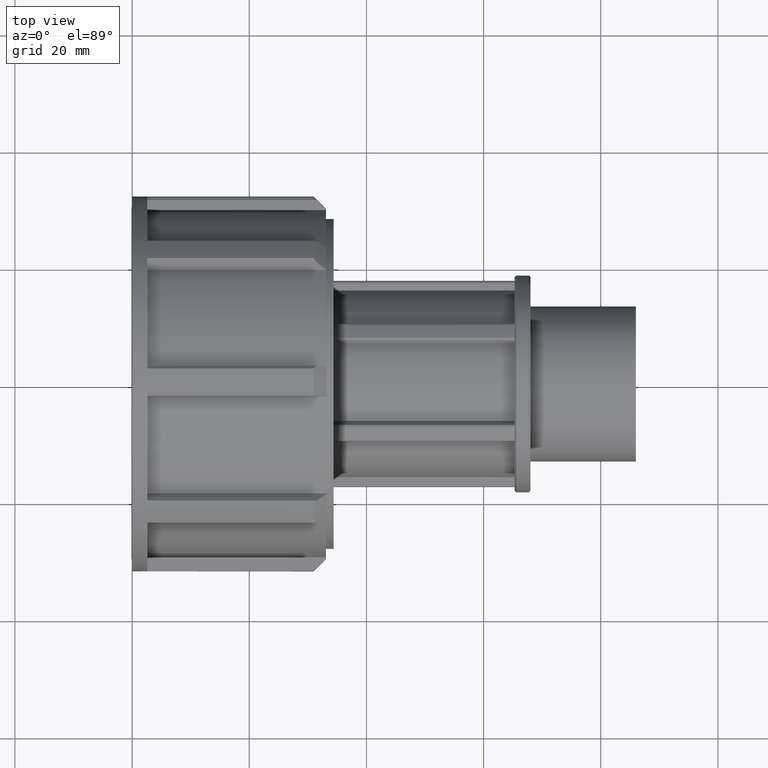
[diagram: clean part render]
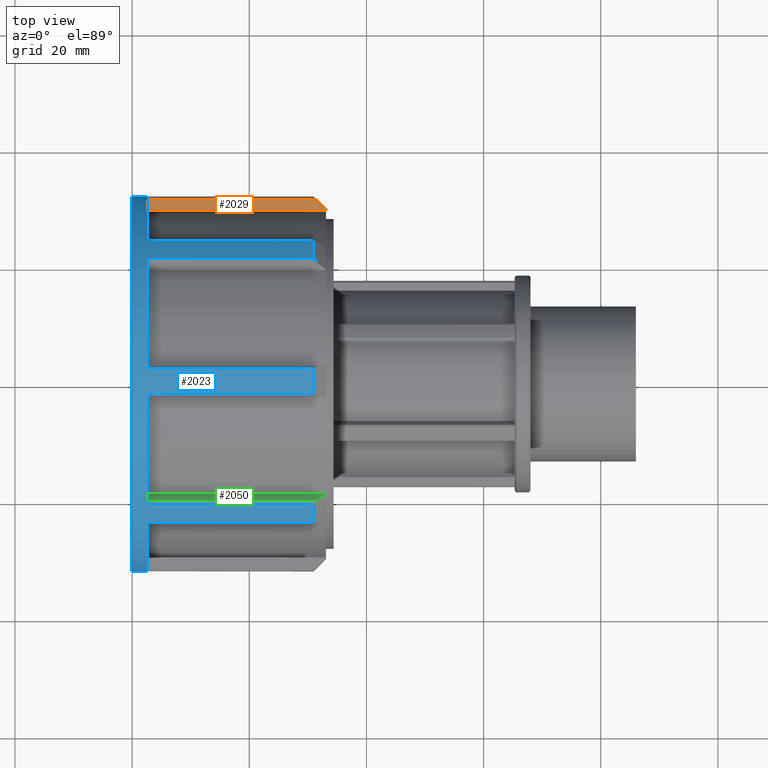
[diagram: same view with three faces highlighted in distinct colors, each labeled with its STEP entity id]
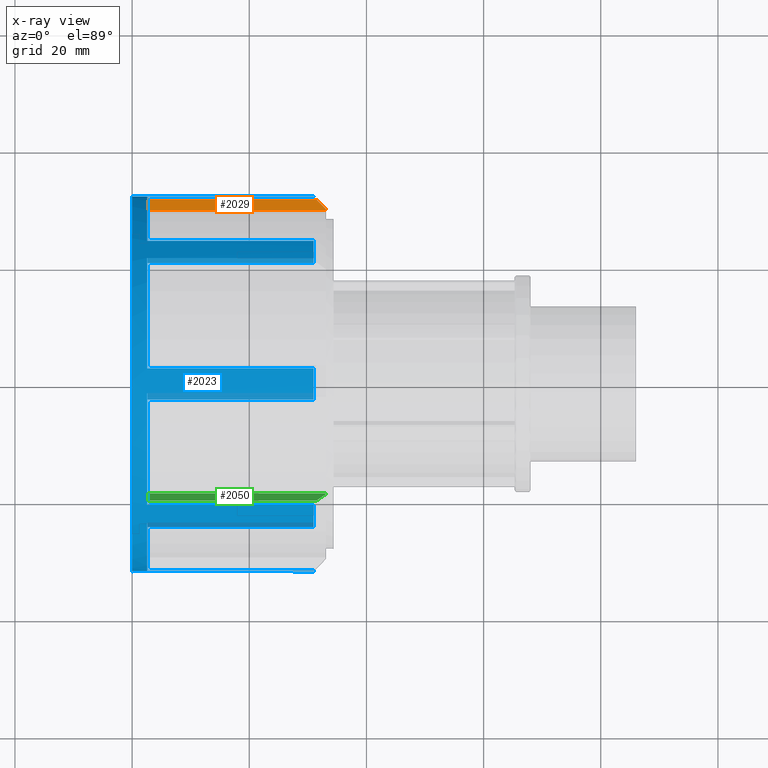
[diagram: x-ray of the same camera — body ghosted, the three highlighted faces saturated]
A machine part, top view with three faces highlighted in distinct colors.
The next image is the same camera in x-ray (body ghosted, the three faces saturated) — at least one of them is partly hidden behind the body in this view.
Their STEP definitions:

[orange] entity #2029 — the highlighted planar face has unit normal (0, 0, 1).
#21=(
BOUNDED_CURVE()
B_SPLINE_CURVE(2,(#3226,#3227,#3228),.UNSPECIFIED.,.F.,.F.)
B_SPLINE_CURVE_WITH_KNOTS((3,3),(4.00848492634826,4.32179029074017),
 .UNSPECIFIED.)
CURVE()
GEOMETRIC_REPRESENTATION_ITEM()
RATIONAL_B_SPLINE_CURVE((1.00845065883688,1.0045555834664,1.))
REPRESENTATION_ITEM('')
);
#246=FACE_OUTER_BOUND('',#368,.T.);
#368=EDGE_LOOP('',(#1603,#1604,#1605,#1606,#1607));
#559=LINE('',#3237,#739);
#560=LINE('',#3240,#740);
#561=LINE('',#3242,#741);
#562=LINE('',#3243,#742);
#739=VECTOR('',#2606,28.9417013413115);
#740=VECTOR('',#2609,1.71944788489031);
#741=VECTOR('',#2610,30.53);
#742=VECTOR('',#2611,0.125213116454761);
#930=VERTEX_POINT('',#3221);
#931=VERTEX_POINT('',#3225);
#933=VERTEX_POINT('',#3235);
#934=VERTEX_POINT('',#3239);
#935=VERTEX_POINT('',#3241);
#1177=EDGE_CURVE('',#930,#931,#21,.T.);
#1181=EDGE_CURVE('',#933,#930,#559,.T.);
#1182=EDGE_CURVE('',#934,#933,#560,.T.);
#1183=EDGE_CURVE('',#935,#934,#561,.T.);
#1184=EDGE_CURVE('',#931,#935,#562,.T.);
#1603=ORIENTED_EDGE('',*,*,#1181,.F.);
#1604=ORIENTED_EDGE('',*,*,#1182,.F.);
#1605=ORIENTED_EDGE('',*,*,#1183,.F.);
#1606=ORIENTED_EDGE('',*,*,#1184,.F.);
#1607=ORIENTED_EDGE('',*,*,#1177,.F.);
#1937=PLANE('',#2195);
#2029=ADVANCED_FACE('',(#246),#1937,.T.);
#2195=AXIS2_PLACEMENT_3D('',#3238,#2607,#2608);
#2606=DIRECTION('',(1.,0.,0.));
#2607=DIRECTION('center_axis',(0.,0.,1.));
#2608=DIRECTION('ref_axis',(0.,1.,0.));
#2609=DIRECTION('',(0.,1.,0.));
#2610=DIRECTION('',(-1.,0.,0.));
#2611=DIRECTION('',(0.,-1.,0.));
#3221=CARTESIAN_POINT('',(31.5217013413115,31.3617543941686,2.6441));
#3225=CARTESIAN_POINT('',(33.11,29.767519625733,2.6441));
#3226=CARTESIAN_POINT('Ctrl Pts',(31.5217013413115,31.3617543941686,2.6441));
#3227=CARTESIAN_POINT('Ctrl Pts',(32.3365618682367,30.5440029302099,2.6441));
#3228=CARTESIAN_POINT('Ctrl Pts',(33.11,29.767519625733,2.6441));
#3235=CARTESIAN_POINT('',(2.58,31.3617543941686,2.6441));
#3237=CARTESIAN_POINT('',(1.29,31.3617543941686,2.6441));
#3238=CARTESIAN_POINT('Origin',(33.11,28.0355905090298,2.6441));
#3239=CARTESIAN_POINT('',(2.58,29.6423065092783,2.6441));
#3240=CARTESIAN_POINT('',(2.58,28.8977952545149,2.6441));
#3241=CARTESIAN_POINT('',(33.11,29.6423065092783,2.6441));
#3242=CARTESIAN_POINT('',(17.845,29.6423065092783,2.6441));
#3243=CARTESIAN_POINT('',(33.11,31.8905743941686,2.6441));

[blue] entity #2023 — the highlighted cylindrical surface (bore or boss wall) has radius 32 mm, axis along (1, 0, 0).
#64=FACE_BOUND('',#362,.T.);
#111=CIRCLE('',#2170,32.);
#113=CIRCLE('',#2173,32.);
#114=CIRCLE('',#2174,32.);
#115=CIRCLE('',#2175,32.);
#116=CIRCLE('',#2176,32.);
#117=CIRCLE('',#2177,32.);
#118=CIRCLE('',#2178,32.);
#119=CIRCLE('',#2179,32.);
#120=CIRCLE('',#2180,32.);
#121=CIRCLE('',#2181,32.);
#122=CIRCLE('',#2182,32.);
#123=CIRCLE('',#2183,32.);
#124=CIRCLE('',#2184,32.);
#125=CIRCLE('',#2185,32.);
#126=CIRCLE('',#2186,32.);
#127=CIRCLE('',#2187,32.);
#128=CIRCLE('',#2188,32.);
#179=CYLINDRICAL_SURFACE('',#2172,32.);
#240=FACE_OUTER_BOUND('',#361,.T.);
#361=EDGE_LOOP('',(#1547));
#362=EDGE_LOOP('',(#1548,#1549,#1550,#1551,#1552,#1553,#1554,#1555,#1556,
#1557,#1558,#1559,#1560,#1561,#1562,#1563,#1564,#1565,#1566,#1567,#1568,
#1569,#1570,#1571,#1572,#1573,#1574,#1575,#1576,#1577,#1578,#1579));
#535=LINE('',#3123,#715);
#536=LINE('',#3146,#716);
#537=LINE('',#3150,#717);
#538=LINE('',#3154,#718);
#539=LINE('',#3158,#719);
#540=LINE('',#3162,#720);
#541=LINE('',#3166,#721);
#542=LINE('',#3170,#722);
#543=LINE('',#3174,#723);
#544=LINE('',#3178,#724);
#545=LINE('',#3182,#725);
#546=LINE('',#3186,#726);
#547=LINE('',#3190,#727);
#548=LINE('',#3194,#728);
#549=LINE('',#3198,#729);
#550=LINE('',#3201,#730);
#715=VECTOR('',#2530,28.41472);
#716=VECTOR('',#2543,28.41472);
#717=VECTOR('',#2546,28.41472);
#718=VECTOR('',#2549,28.41472);
#719=VECTOR('',#2552,28.41472);
#720=VECTOR('',#2555,28.41472);
#721=VECTOR('',#2558,28.41472);
#722=VECTOR('',#2561,28.41472);
#723=VECTOR('',#2564,28.41472);
#724=VECTOR('',#2567,28.41472);
#725=VECTOR('',#2570,28.41472);
#726=VECTOR('',#2573,28.41472);
#727=VECTOR('',#2576,28.41472);
#728=VECTOR('',#2579,28.41472);
#729=VECTOR('',#2582,28.41472);
#730=VECTOR('',#2585,28.41472);
#887=VERTEX_POINT('',#3114);
#890=VERTEX_POINT('',#3121);
#891=VERTEX_POINT('',#3125);
#895=VERTEX_POINT('',#3141);
#896=VERTEX_POINT('',#3143);
#897=VERTEX_POINT('',#3145);
#898=VERTEX_POINT('',#3147);
#899=VERTEX_POINT('',#3149);
#900=VERTEX_POINT('',#3151);
#901=VERTEX_POINT('',#3153);
#902=VERTEX_POINT('',#3155);
#903=VERTEX_POINT('',#3157);
#904=VERTEX_POINT('',#3159);
#905=VERTEX_POINT('',#3161);
#906=VERTEX_POINT('',#3163);
#907=VERTEX_POINT('',#3165);
#908=VERTEX_POINT('',#3167);
#909=VERTEX_POINT('',#3169);
#910=VERTEX_POINT('',#3171);
#911=VERTEX_POINT('',#3173);
#912=VERTEX_POINT('',#3175);
#913=VERTEX_POINT('',#3177);
#914=VERTEX_POINT('',#3179);
#915=VERTEX_POINT('',#3181);
#916=VERTEX_POINT('',#3183);
#917=VERTEX_POINT('',#3185);
#918=VERTEX_POINT('',#3187);
#919=VERTEX_POINT('',#3189);
#920=VERTEX_POINT('',#3191);
#921=VERTEX_POINT('',#3193);
#922=VERTEX_POINT('',#3195);
#923=VERTEX_POINT('',#3197);
#924=VERTEX_POINT('',#3199);
#1131=EDGE_CURVE('',#890,#887,#535,.T.);
#1132=EDGE_CURVE('',#887,#891,#111,.T.);
#1137=EDGE_CURVE('',#895,#895,#113,.T.);
#1138=EDGE_CURVE('',#896,#890,#114,.T.);
#1139=EDGE_CURVE('',#897,#896,#536,.T.);
#1140=EDGE_CURVE('',#898,#897,#115,.T.);
#1141=EDGE_CURVE('',#899,#898,#537,.T.);
#1142=EDGE_CURVE('',#900,#899,#116,.T.);
#1143=EDGE_CURVE('',#901,#900,#538,.T.);
#1144=EDGE_CURVE('',#902,#901,#117,.T.);
#1145=EDGE_CURVE('',#903,#902,#539,.T.);
#1146=EDGE_CURVE('',#904,#903,#118,.T.);
#1147=EDGE_CURVE('',#905,#904,#540,.T.);
#1148=EDGE_CURVE('',#906,#905,#119,.T.);
#1149=EDGE_CURVE('',#907,#906,#541,.T.);
#1150=EDGE_CURVE('',#908,#907,#120,.T.);
#1151=EDGE_CURVE('',#909,#908,#542,.T.);
#1152=EDGE_CURVE('',#910,#909,#121,.T.);
#1153=EDGE_CURVE('',#911,#910,#543,.T.);
#1154=EDGE_CURVE('',#912,#911,#122,.T.);
#1155=EDGE_CURVE('',#913,#912,#544,.T.);
#1156=EDGE_CURVE('',#914,#913,#123,.T.);
#1157=EDGE_CURVE('',#915,#914,#545,.T.);
#1158=EDGE_CURVE('',#916,#915,#124,.T.);
#1159=EDGE_CURVE('',#917,#916,#546,.T.);
#1160=EDGE_CURVE('',#918,#917,#125,.T.);
#1161=EDGE_CURVE('',#919,#918,#547,.T.);
#1162=EDGE_CURVE('',#920,#919,#126,.T.);
#1163=EDGE_CURVE('',#921,#920,#548,.T.);
#1164=EDGE_CURVE('',#922,#921,#127,.T.);
#1165=EDGE_CURVE('',#923,#922,#549,.T.);
#1166=EDGE_CURVE('',#924,#923,#128,.T.);
#1167=EDGE_CURVE('',#891,#924,#550,.T.);
#1547=ORIENTED_EDGE('',*,*,#1137,.T.);
#1548=ORIENTED_EDGE('',*,*,#1131,.F.);
#1549=ORIENTED_EDGE('',*,*,#1138,.F.);
#1550=ORIENTED_EDGE('',*,*,#1139,.F.);
#1551=ORIENTED_EDGE('',*,*,#1140,.F.);
#1552=ORIENTED_EDGE('',*,*,#1141,.F.);
#1553=ORIENTED_EDGE('',*,*,#1142,.F.);
#1554=ORIENTED_EDGE('',*,*,#1143,.F.);
#1555=ORIENTED_EDGE('',*,*,#1144,.F.);
#1556=ORIENTED_EDGE('',*,*,#1145,.F.);
#1557=ORIENTED_EDGE('',*,*,#1146,.F.);
#1558=ORIENTED_EDGE('',*,*,#1147,.F.);
#1559=ORIENTED_EDGE('',*,*,#1148,.F.);
#1560=ORIENTED_EDGE('',*,*,#1149,.F.);
#1561=ORIENTED_EDGE('',*,*,#1150,.F.);
#1562=ORIENTED_EDGE('',*,*,#1151,.F.);
#1563=ORIENTED_EDGE('',*,*,#1152,.F.);
#1564=ORIENTED_EDGE('',*,*,#1153,.F.);
#1565=ORIENTED_EDGE('',*,*,#1154,.F.);
#1566=ORIENTED_EDGE('',*,*,#1155,.F.);
#1567=ORIENTED_EDGE('',*,*,#1156,.F.);
#1568=ORIENTED_EDGE('',*,*,#1157,.F.);
#1569=ORIENTED_EDGE('',*,*,#1158,.F.);
#1570=ORIENTED_EDGE('',*,*,#1159,.F.);
#1571=ORIENTED_EDGE('',*,*,#1160,.F.);
#1572=ORIENTED_EDGE('',*,*,#1161,.F.);
#1573=ORIENTED_EDGE('',*,*,#1162,.F.);
#1574=ORIENTED_EDGE('',*,*,#1163,.F.);
#1575=ORIENTED_EDGE('',*,*,#1164,.F.);
#1576=ORIENTED_EDGE('',*,*,#1165,.F.);
#1577=ORIENTED_EDGE('',*,*,#1166,.F.);
#1578=ORIENTED_EDGE('',*,*,#1167,.F.);
#1579=ORIENTED_EDGE('',*,*,#1132,.F.);
#2023=ADVANCED_FACE('',(#240,#64),#179,.T.);
#2170=AXIS2_PLACEMENT_3D('',#3126,#2533,#2534);
#2172=AXIS2_PLACEMENT_3D('',#3140,#2537,#2538);
#2173=AXIS2_PLACEMENT_3D('',#3142,#2539,#2540);
#2174=AXIS2_PLACEMENT_3D('',#3144,#2541,#2542);
#2175=AXIS2_PLACEMENT_3D('',#3148,#2544,#2545);
#2176=AXIS2_PLACEMENT_3D('',#3152,#2547,#2548);
#2177=AXIS2_PLACEMENT_3D('',#3156,#2550,#2551);
#2178=AXIS2_PLACEMENT_3D('',#3160,#2553,#2554);
#2179=AXIS2_PLACEMENT_3D('',#3164,#2556,#2557);
#2180=AXIS2_PLACEMENT_3D('',#3168,#2559,#2560);
#2181=AXIS2_PLACEMENT_3D('',#3172,#2562,#2563);
#2182=AXIS2_PLACEMENT_3D('',#3176,#2565,#2566);
#2183=AXIS2_PLACEMENT_3D('',#3180,#2568,#2569);
#2184=AXIS2_PLACEMENT_3D('',#3184,#2571,#2572);
#2185=AXIS2_PLACEMENT_3D('',#3188,#2574,#2575);
#2186=AXIS2_PLACEMENT_3D('',#3192,#2577,#2578);
#2187=AXIS2_PLACEMENT_3D('',#3196,#2580,#2581);
#2188=AXIS2_PLACEMENT_3D('',#3200,#2583,#2584);
#2530=DIRECTION('',(1.,0.,0.));
#2533=DIRECTION('center_axis',(1.,0.,0.));
#2534=DIRECTION('ref_axis',(0.,1.,0.));
#2537=DIRECTION('center_axis',(1.,0.,0.));
#2538=DIRECTION('ref_axis',(0.,1.,0.));
#2539=DIRECTION('center_axis',(1.,0.,0.));
#2540=DIRECTION('ref_axis',(0.,0.,-1.));
#2541=DIRECTION('center_axis',(1.,0.,0.));
#2542=DIRECTION('ref_axis',(0.,0.,-1.));
#2543=DIRECTION('',(-1.,0.,0.));
#2544=DIRECTION('center_axis',(1.,0.,0.));
#2545=DIRECTION('ref_axis',(0.,1.,0.));
#2546=DIRECTION('',(1.,0.,0.));
#2547=DIRECTION('center_axis',(1.,0.,0.));
#2548=DIRECTION('ref_axis',(0.,0.,-1.));
#2549=DIRECTION('',(-1.,0.,0.));
#2550=DIRECTION('center_axis',(1.,0.,0.));
#2551=DIRECTION('ref_axis',(0.,1.,0.));
#2552=DIRECTION('',(1.,0.,0.));
#2553=DIRECTION('center_axis',(1.,0.,0.));
#2554=DIRECTION('ref_axis',(0.,0.,-1.));
#2555=DIRECTION('',(-1.,0.,0.));
#2556=DIRECTION('center_axis',(1.,0.,0.));
#2557=DIRECTION('ref_axis',(0.,1.,0.));
#2558=DIRECTION('',(1.,0.,0.));
#2559=DIRECTION('center_axis',(1.,0.,0.));
#2560=DIRECTION('ref_axis',(0.,0.,-1.));
#2561=DIRECTION('',(-1.,0.,0.));
#2562=DIRECTION('center_axis',(1.,0.,0.));
#2563=DIRECTION('ref_axis',(0.,-1.,0.));
#2564=DIRECTION('',(1.,0.,0.));
#2565=DIRECTION('center_axis',(1.,0.,0.));
#2566=DIRECTION('ref_axis',(0.,0.,-1.));
#2567=DIRECTION('',(-1.,0.,0.));
#2568=DIRECTION('center_axis',(1.,0.,0.));
#2569=DIRECTION('ref_axis',(0.,-1.,0.));
#2570=DIRECTION('',(1.,0.,0.));
#2571=DIRECTION('center_axis',(1.,0.,0.));
#2572=DIRECTION('ref_axis',(0.,0.,-1.));
#2573=DIRECTION('',(-1.,0.,0.));
#2574=DIRECTION('center_axis',(1.,0.,0.));
#2575=DIRECTION('ref_axis',(0.,-1.,0.));
#2576=DIRECTION('',(1.,0.,0.));
#2577=DIRECTION('center_axis',(1.,0.,0.));
#2578=DIRECTION('ref_axis',(0.,0.,-1.));
#2579=DIRECTION('',(-1.,0.,0.));
#2580=DIRECTION('center_axis',(1.,0.,0.));
#2581=DIRECTION('ref_axis',(0.,1.,0.));
#2582=DIRECTION('',(1.,0.,0.));
#2583=DIRECTION('center_axis',(1.,0.,0.));
#2584=DIRECTION('ref_axis',(0.,0.,-1.));
#2585=DIRECTION('',(-1.,0.,0.));
#3114=CARTESIAN_POINT('',(30.99472,24.0746234411097,21.0810935714629));
#3121=CARTESIAN_POINT('',(2.58,24.0746234411097,21.0810935714629));
#3123=CARTESIAN_POINT('',(1.29,24.0746234411097,21.0810935714629));
#3125=CARTESIAN_POINT('',(30.99472,21.0810935714629,24.0746234411097));
#3126=CARTESIAN_POINT('Origin',(30.99472,0.,0.));
#3140=CARTESIAN_POINT('Origin',(1.29,0.,0.));
#3141=CARTESIAN_POINT('',(0.,32.,0.));
#3142=CARTESIAN_POINT('Origin',(0.,0.,0.));
#3143=CARTESIAN_POINT('',(2.58,31.9299137089308,2.11674527051173));
#3144=CARTESIAN_POINT('Origin',(2.58000000000001,0.,0.));
#3145=CARTESIAN_POINT('',(30.99472,31.9299137089308,2.11674527051173));
#3146=CARTESIAN_POINT('',(1.29,31.9299137089308,2.11674527051173));
#3147=CARTESIAN_POINT('',(30.99472,31.9299137089308,-2.11674527051174));
#3148=CARTESIAN_POINT('Origin',(30.99472,0.,0.));
#3149=CARTESIAN_POINT('',(2.58,31.9299137089308,-2.11674527051174));
#3150=CARTESIAN_POINT('',(1.29,31.9299137089308,-2.11674527051174));
#3151=CARTESIAN_POINT('',(2.58,24.0746234411097,-21.0810935714629));
#3152=CARTESIAN_POINT('Origin',(2.58000000000001,0.,0.));
#3153=CARTESIAN_POINT('',(30.99472,24.0746234411097,-21.0810935714629));
#3154=CARTESIAN_POINT('',(1.29,24.0746234411097,-21.0810935714629));
#3155=CARTESIAN_POINT('',(30.99472,21.0810935714629,-24.0746234411097));
#3156=CARTESIAN_POINT('Origin',(30.99472,0.,0.));
#3157=CARTESIAN_POINT('',(2.58,21.0810935714629,-24.0746234411097));
#3158=CARTESIAN_POINT('',(1.29,21.0810935714629,-24.0746234411097));
#3159=CARTESIAN_POINT('',(2.58,2.11674527051173,-31.9299137089308));
#3160=CARTESIAN_POINT('Origin',(2.58000000000001,0.,0.));
#3161=CARTESIAN_POINT('',(30.99472,2.11674527051173,-31.9299137089308));
#3162=CARTESIAN_POINT('',(1.29,2.11674527051173,-31.9299137089308));
#3163=CARTESIAN_POINT('',(30.99472,-2.11674527051174,-31.9299137089308));
#3164=CARTESIAN_POINT('Origin',(30.99472,0.,0.));
#3165=CARTESIAN_POINT('',(2.58,-2.11674527051174,-31.9299137089308));
#3166=CARTESIAN_POINT('',(1.29,-2.11674527051174,-31.9299137089308));
#3167=CARTESIAN_POINT('',(2.58,-21.0810935714629,-24.0746234411097));
#3168=CARTESIAN_POINT('Origin',(2.58000000000001,0.,0.));
#3169=CARTESIAN_POINT('',(30.99472,-21.0810935714629,-24.0746234411097));
#3170=CARTESIAN_POINT('',(1.29,-21.0810935714629,-24.0746234411097));
#3171=CARTESIAN_POINT('',(30.99472,-24.0746234411097,-21.0810935714629));
#3172=CARTESIAN_POINT('Origin',(30.99472,0.,0.));
#3173=CARTESIAN_POINT('',(2.58,-24.0746234411097,-21.0810935714629));
#3174=CARTESIAN_POINT('',(1.29,-24.0746234411097,-21.0810935714629));
#3175=CARTESIAN_POINT('',(2.58,-31.9299137089308,-2.11674527051174));
#3176=CARTESIAN_POINT('Origin',(2.58000000000001,0.,0.));
#3177=CARTESIAN_POINT('',(30.99472,-31.9299137089308,-2.11674527051174));
#3178=CARTESIAN_POINT('',(1.29,-31.9299137089308,-2.11674527051174));
#3179=CARTESIAN_POINT('',(30.99472,-31.9299137089308,2.11674527051173));
#3180=CARTESIAN_POINT('Origin',(30.99472,0.,0.));
#3181=CARTESIAN_POINT('',(2.58,-31.9299137089308,2.11674527051173));
#3182=CARTESIAN_POINT('',(1.29,-31.9299137089308,2.11674527051173));
#3183=CARTESIAN_POINT('',(2.58,-24.0746234411097,21.0810935714629));
#3184=CARTESIAN_POINT('Origin',(2.58000000000001,0.,0.));
#3185=CARTESIAN_POINT('',(30.99472,-24.0746234411097,21.0810935714629));
#3186=CARTESIAN_POINT('',(1.29,-24.0746234411097,21.0810935714629));
#3187=CARTESIAN_POINT('',(30.99472,-21.0810935714629,24.0746234411097));
#3188=CARTESIAN_POINT('Origin',(30.99472,0.,0.));
#3189=CARTESIAN_POINT('',(2.58,-21.0810935714629,24.0746234411097));
#3190=CARTESIAN_POINT('',(1.29,-21.0810935714629,24.0746234411097));
#3191=CARTESIAN_POINT('',(2.58,-2.11674527051174,31.9299137089308));
#3192=CARTESIAN_POINT('Origin',(2.58000000000001,0.,0.));
#3193=CARTESIAN_POINT('',(30.99472,-2.11674527051174,31.9299137089308));
#3194=CARTESIAN_POINT('',(1.29,-2.11674527051174,31.9299137089308));
#3195=CARTESIAN_POINT('',(30.99472,2.11674527051173,31.9299137089308));
#3196=CARTESIAN_POINT('Origin',(30.99472,0.,0.));
#3197=CARTESIAN_POINT('',(2.58,2.11674527051173,31.9299137089308));
#3198=CARTESIAN_POINT('',(1.29,2.11674527051173,31.9299137089308));
#3199=CARTESIAN_POINT('',(2.58,21.0810935714629,24.0746234411097));
#3200=CARTESIAN_POINT('Origin',(2.58000000000001,0.,0.));
#3201=CARTESIAN_POINT('',(1.29,21.0810935714629,24.0746234411097));

[green] entity #2050 — the highlighted planar face has unit normal (0, 0.7071, 0.7071).
#42=(
BOUNDED_CURVE()
B_SPLINE_CURVE(2,(#3391,#3392,#3393),.UNSPECIFIED.,.F.,.F.)
B_SPLINE_CURVE_WITH_KNOTS((3,3),(0.,0.313305364384852),.UNSPECIFIED.)
CURVE()
GEOMETRIC_REPRESENTATION_ITEM()
RATIONAL_B_SPLINE_CURVE((1.,1.00455558346355,1.0084506588316))
REPRESENTATION_ITEM('')
);
#267=FACE_OUTER_BOUND('',#389,.T.);
#389=EDGE_LOOP('',(#1703,#1704,#1705,#1706,#1707));
#591=LINE('',#3378,#771);
#598=LINE('',#3406,#778);
#599=LINE('',#3408,#779);
#600=LINE('',#3409,#780);
#771=VECTOR('',#2682,28.9417013413116);
#778=VECTOR('',#2699,0.125213116454764);
#779=VECTOR('',#2700,30.53);
#780=VECTOR('',#2701,1.71944788489031);
#968=VERTEX_POINT('',#3373);
#969=VERTEX_POINT('',#3377);
#972=VERTEX_POINT('',#3389);
#976=VERTEX_POINT('',#3405);
#977=VERTEX_POINT('',#3407);
#1234=EDGE_CURVE('',#968,#969,#591,.T.);
#1239=EDGE_CURVE('',#972,#968,#42,.T.);
#1245=EDGE_CURVE('',#976,#972,#598,.T.);
#1246=EDGE_CURVE('',#977,#976,#599,.T.);
#1247=EDGE_CURVE('',#969,#977,#600,.T.);
#1703=ORIENTED_EDGE('',*,*,#1234,.F.);
#1704=ORIENTED_EDGE('',*,*,#1239,.F.);
#1705=ORIENTED_EDGE('',*,*,#1245,.F.);
#1706=ORIENTED_EDGE('',*,*,#1246,.F.);
#1707=ORIENTED_EDGE('',*,*,#1247,.F.);
#1953=PLANE('',#2221);
#2050=ADVANCED_FACE('',(#267),#1953,.T.);
#2221=AXIS2_PLACEMENT_3D('',#3404,#2697,#2698);
#2682=DIRECTION('',(-1.,0.,0.));
#2697=DIRECTION('center_axis',(0.,0.707106781186547,0.707106781186548));
#2698=DIRECTION('ref_axis',(0.,0.707106781186548,-0.707106781186548));
#2699=DIRECTION('',(0.,-0.707106781186548,0.707106781186547));
#2700=DIRECTION('',(1.,0.,0.));
#2701=DIRECTION('',(0.,0.707106781186548,-0.707106781186547));
#3373=CARTESIAN_POINT('',(31.5217013413116,-20.3064481618883,24.0457702421589));
#3377=CARTESIAN_POINT('',(2.58,-20.3064481618883,24.045770242159));
#3378=CARTESIAN_POINT('',(1.29,-20.3064481618883,24.045770242159));
#3389=CARTESIAN_POINT('',(33.11,-19.1791539463241,22.9184760265948));
#3391=CARTESIAN_POINT('Ctrl Pts',(33.11,-19.1791539463241,22.9184760265948));
#3392=CARTESIAN_POINT('Ctrl Pts',(32.3365618682365,-19.728210556398,23.4675326366687));
#3393=CARTESIAN_POINT('Ctrl Pts',(31.5217013413116,-20.3064481618883,24.045770242159));
#3404=CARTESIAN_POINT('Origin',(33.11,-20.6803803699153,24.419702450186));
#3405=CARTESIAN_POINT('',(33.11,-19.0906149025854,22.8299369828561));
#3406=CARTESIAN_POINT('',(33.11,-17.9544951233688,21.6938172036395));
#3407=CARTESIAN_POINT('',(2.58,-19.0906149025854,22.8299369828561));
#3408=CARTESIAN_POINT('',(17.845,-19.0906149025854,22.8299369828562));
#3409=CARTESIAN_POINT('',(2.58,-1.96535966488999,5.70468174516068));